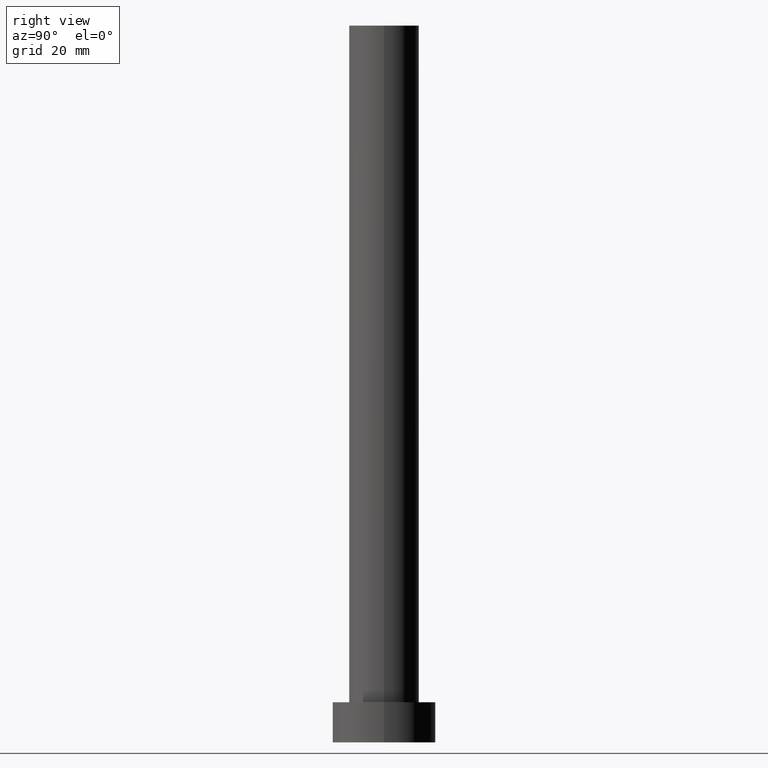
[diagram: clean part render]
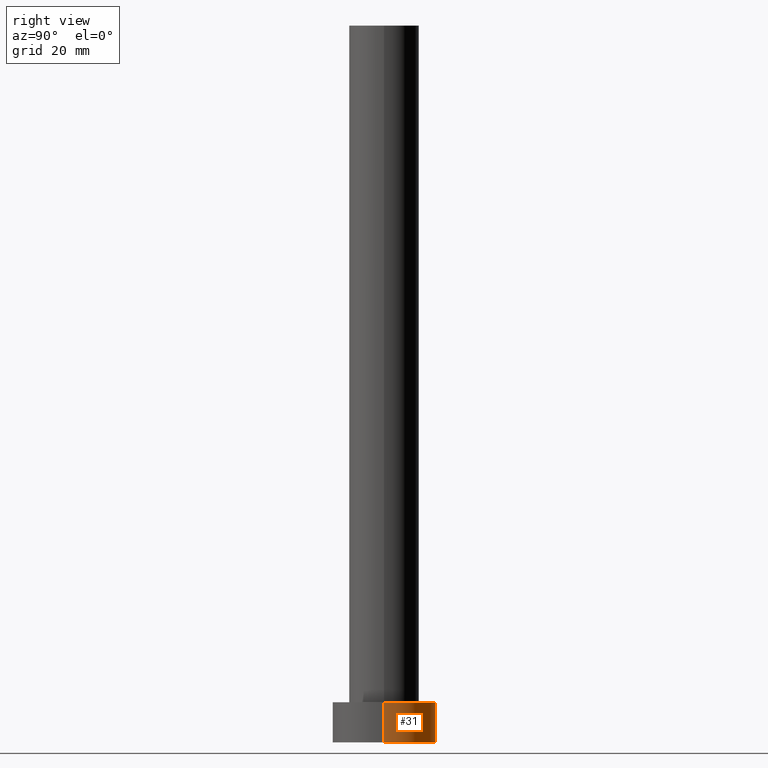
[diagram: same view with one face highlighted and labeled with its STEP entity id]
A machine part, right view. The second image highlights one B-rep face of the part: STEP entity #31.
In plain terms, the highlighted cylindrical surface (partial cylindrical patch) has radius 9 mm, axis along (-0, -0, -1).
Its self-contained STEP definition (entity closure, byte-faithful):
#2 = CARTESIAN_POINT ( 'NONE',  ( 0.000000000000000000, 0.000000000000000000, 7.000000000000000000 ) ) ;
#8 = DIRECTION ( 'NONE',  ( -0.000000000000000000, -0.000000000000000000, -1.000000000000000000 ) ) ;
#15 = CARTESIAN_POINT ( 'NONE',  ( 9.000000000000000000, 1.102182119232617714E-15, 0.000000000000000000 ) ) ;
#21 = ORIENTED_EDGE ( 'NONE', *, *, #239, .F. ) ;
#23 = DIRECTION ( 'NONE',  ( 1.000000000000000000, 0.000000000000000000, 0.000000000000000000 ) ) ;
#24 = EDGE_CURVE ( 'NONE', #105, #58, #118, .T. ) ;
#31 = ADVANCED_FACE ( 'NONE', ( #189 ), #151, .T. ) ;
#35 = CARTESIAN_POINT ( 'NONE',  ( -9.000000000000000000, 0.000000000000000000, 7.000000000000000000 ) ) ;
#53 = AXIS2_PLACEMENT_3D ( 'NONE', #2, #199, #23 ) ;
#54 = CARTESIAN_POINT ( 'NONE',  ( 0.000000000000000000, 0.000000000000000000, 7.000000000000000000 ) ) ;
#58 = VERTEX_POINT ( 'NONE', #250 ) ;
#63 = VERTEX_POINT ( 'NONE', #72 ) ;
#66 = CIRCLE ( 'NONE', #53, 9.000000000000000000 ) ;
#72 = CARTESIAN_POINT ( 'NONE',  ( 9.000000000000000000, 1.102182119232617714E-15, 7.000000000000000000 ) ) ;
#77 = LINE ( 'NONE', #236, #95 ) ;
#81 = EDGE_LOOP ( 'NONE', ( #223, #255, #111, #21 ) ) ;
#87 = LINE ( 'NONE', #125, #179 ) ;
#92 = AXIS2_PLACEMENT_3D ( 'NONE', #169, #149, #208 ) ;
#95 = VECTOR ( 'NONE', #217, 1000.000000000000000 ) ;
#105 = VERTEX_POINT ( 'NONE', #15 ) ;
#111 = ORIENTED_EDGE ( 'NONE', *, *, #24, .T. ) ;
#118 = CIRCLE ( 'NONE', #92, 9.000000000000000000 ) ;
#125 = CARTESIAN_POINT ( 'NONE',  ( -9.000000000000000000, 0.000000000000000000, 7.000000000000000000 ) ) ;
#145 = EDGE_CURVE ( 'NONE', #63, #105, #77, .T. ) ;
#149 = DIRECTION ( 'NONE',  ( 0.000000000000000000, 0.000000000000000000, 1.000000000000000000 ) ) ;
#150 = VERTEX_POINT ( 'NONE', #35 ) ;
#151 = CYLINDRICAL_SURFACE ( 'NONE', #195, 9.000000000000000000 ) ;
#169 = CARTESIAN_POINT ( 'NONE',  ( 0.000000000000000000, 0.000000000000000000, 0.000000000000000000 ) ) ;
#179 = VECTOR ( 'NONE', #187, 1000.000000000000000 ) ;
#187 = DIRECTION ( 'NONE',  ( -0.000000000000000000, -0.000000000000000000, -1.000000000000000000 ) ) ;
#189 = FACE_OUTER_BOUND ( 'NONE', #81, .T. ) ;
#195 = AXIS2_PLACEMENT_3D ( 'NONE', #54, #8, #211 ) ;
#199 = DIRECTION ( 'NONE',  ( 0.000000000000000000, 0.000000000000000000, 1.000000000000000000 ) ) ;
#208 = DIRECTION ( 'NONE',  ( 1.000000000000000000, 0.000000000000000000, 0.000000000000000000 ) ) ;
#211 = DIRECTION ( 'NONE',  ( -1.000000000000000000, 0.000000000000000000, 0.000000000000000000 ) ) ;
#215 = EDGE_CURVE ( 'NONE', #63, #150, #66, .T. ) ;
#217 = DIRECTION ( 'NONE',  ( -0.000000000000000000, -0.000000000000000000, -1.000000000000000000 ) ) ;
#223 = ORIENTED_EDGE ( 'NONE', *, *, #215, .F. ) ;
#236 = CARTESIAN_POINT ( 'NONE',  ( 9.000000000000000000, 1.102182119232617714E-15, 7.000000000000000000 ) ) ;
#239 = EDGE_CURVE ( 'NONE', #150, #58, #87, .T. ) ;
#250 = CARTESIAN_POINT ( 'NONE',  ( -9.000000000000000000, 0.000000000000000000, 0.000000000000000000 ) ) ;
#255 = ORIENTED_EDGE ( 'NONE', *, *, #145, .T. ) ;